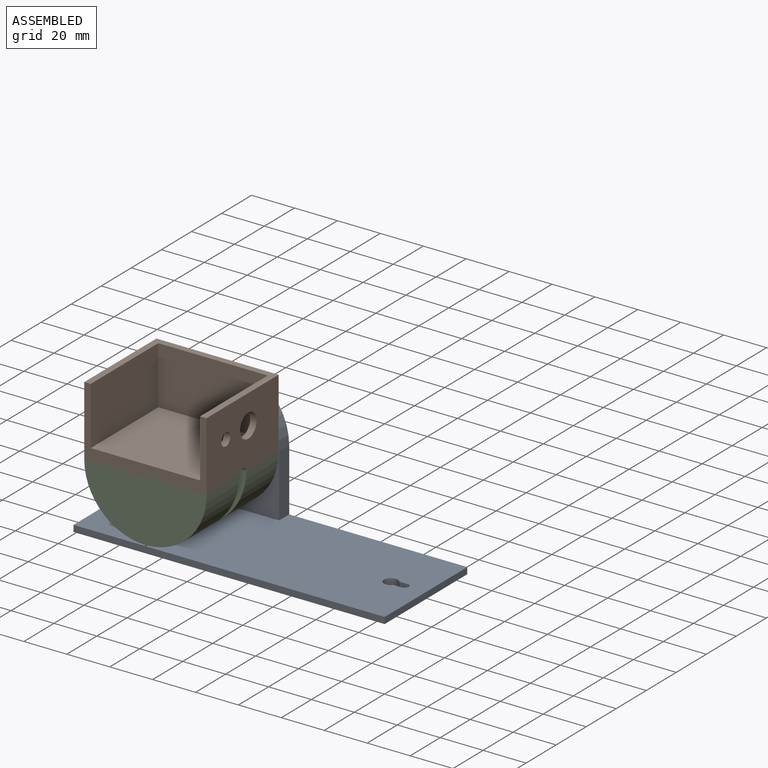
[diagram: assembled view]
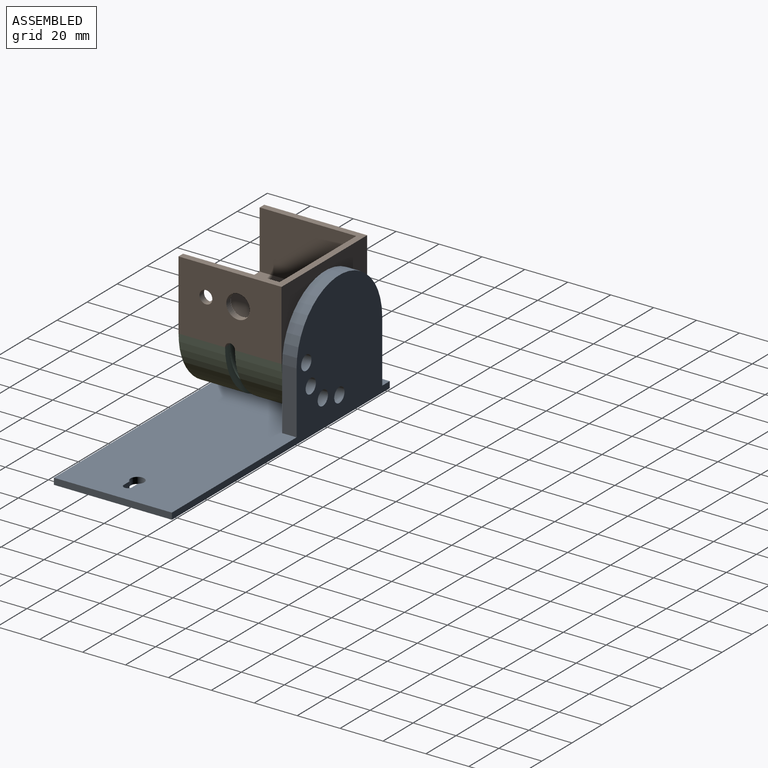
[diagram: assembled view, second angle]
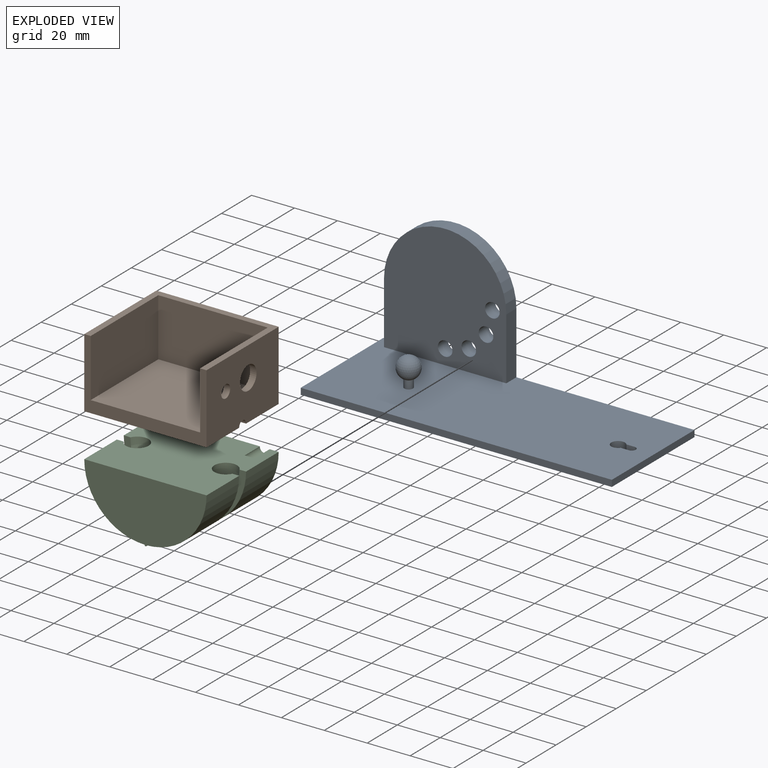
[diagram: exploded view]
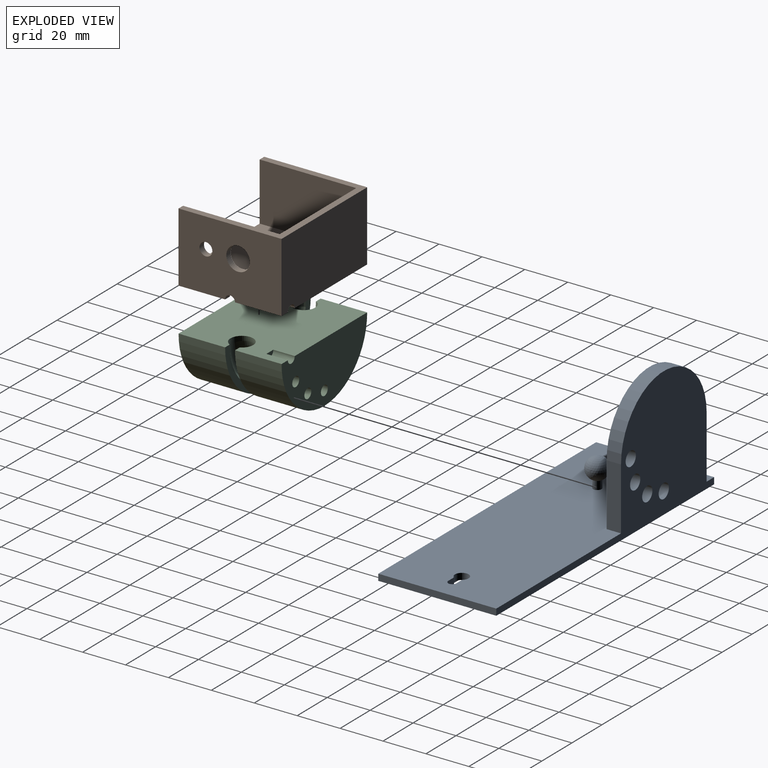
[diagram: exploded view, second angle]
ASSEMBLY  parts=3 mates=2
PART A: 20 faces, bbox 145x55x60.5 mm
  f0: plane 55x3mm, normal (-1,0,0), area 165mm2, adj f1,f3,f4,f5
  f1: plane 145x55mm, normal (0,0,-1), area 7924.8mm2, adj f0,f2,f4,f5,f16,f17,f18,f19
  f2: plane 55x3mm, normal (1,0,0), area 165mm2, adj f1,f3,f4,f5
  f3: plane 145x55mm, normal (0,0,1), area 7530.3mm2, adj f0,f2,f4,f5,f6,f8,f13,f14
  f4: plane 145x3mm, normal (0,-1,0), area 435mm2, adj f0,f1,f2,f3
  f5: plane 145x60.5mm, normal (0,1,0), area 3218.6mm2, adj f0,f1,f2,f3,f6,f7,f8,f9
  f6: plane 29x6.7mm, normal (1,0,0), area 194.3mm2, adj f3,f5,f7,f13
  f7: cylinder r=28.5mm len=57mm, axis (0,1,0), area 599.9mm2, adj f5,f6,f8,f13
  f8: plane 29x6.7mm, normal (-1,0,0), area 194.3mm2, adj f3,f5,f7,f13
  f9: cylinder r=3.4mm len=6.8mm, axis (0,1,0), area 143.1mm2, adj f5,f13
  f10: cylinder r=3.4mm len=6.8mm, axis (0,1,0), area 143.1mm2, adj f5,f13
  f11: cylinder r=3.4mm len=6.8mm, axis (0,1,0), area 143.1mm2, adj f5,f13
  f12: cylinder r=3.4mm len=6.8mm, axis (0,1,0), area 143.1mm2, adj f5,f13
  f13: plane 57.5x57mm, normal (0,-1,0), area 2783.6mm2, adj f3,f6,f7,f8,f9,f10,f11,f12
  f14: cylinder r=2mm len=4mm, axis (0,0,-1), area 47.8mm2, adj f3,f15
  f15: sphere r=5mm, area 301mm2, adj f14
  f16: plane 3.81x3mm, normal (0,-1,0), area 11.4mm2, adj f1,f3,f17,f19
  f17: cylinder r=3.17mm len=6.35mm, axis (0,0,1), area 47.6mm2, adj f1,f3,f16,f18
  f18: plane 3.81x3mm, normal (0,1,0), area 11.4mm2, adj f1,f3,f17,f19
  f19: cylinder r=1.91mm len=3.81mm, axis (0,0,1), area 18mm2, adj f1,f3,f16,f18
PART B: 18 faces, bbox 48x57x32.5 mm
  f0: plane 57x32.5mm, normal (-1,0,0), area 1844.2mm2, adj f1,f2,f3,f9,f16
  f1: plane 57x48mm, normal (0,0,-1), area 2488.2mm2, adj f0,f2,f3,f4,f10,f11,f12,f13
  f2: plane 48x32.5mm, normal (0,1,0), area 1428.4mm2, adj f0,f1,f4,f9,f13,f14,f15
  f3: plane 48x32.5mm, normal (0,-1,0), area 1551.7mm2, adj f0,f1,f4,f9,f11
  f4: plane 57x32.5mm, normal (1,0,0), area 475.5mm2, adj f1,f2,f3,f5,f6,f7,f9
  f5: plane 51x45mm, normal (0,0,1), area 2295mm2, adj f4,f6,f7,f8
  f6: plane 45x27mm, normal (0,1,0), area 1215mm2, adj f4,f5,f8,f9
  f7: plane 45x27mm, normal (0,-1,0), area 1091.7mm2, adj f4,f5,f8,f9,f14,f15
  f8: plane 51x27mm, normal (1,0,0), area 1377mm2, adj f5,f6,f7,f9
  f9: plane 57x48mm, normal (0,0,1), area 441mm2, adj f0,f2,f3,f4,f6,f7,f8
  f10: sphere r=5.3mm, area 167.8mm2, adj f1,f11
  f11: cylinder r=2.3mm len=4.6mm, axis (0,1,0), area 22.5mm2, adj f1,f3,f10
  f12: sphere r=5.3mm, area 167.8mm2, adj f1,f13
  f13: cylinder r=2.3mm len=4.6mm, axis (0,1,0), area 22.5mm2, adj f1,f2,f12
  f14: cylinder r=5.5mm len=11mm, axis (0,1,0), area 103.7mm2, adj f2,f7
  f15: cylinder r=3mm len=6mm, axis (0,1,0), area 56.5mm2, adj f2,f7
  f16: cylinder r=2.3mm len=10mm, axis (-1,0,0), area 72.3mm2, adj f0,f1,f17
  f17: plane 4.6x2.3mm, normal (-1,0,0), area 8.3mm2, adj f1,f16
PART C: 24 faces, bbox 57x48x29 mm
  f0: plane 57x48mm, normal (0,0,1), area 2488.2mm2, adj f1,f2,f3,f4,f5,f6,f7,f8
  f1: cylinder r=28.5mm len=28.5mm, axis (0,1,0), area 964.9mm2, adj f0,f6,f9,f13
  f2: cylinder r=28.5mm len=28.5mm, axis (0,1,0), area 964.9mm2, adj f0,f6,f9,f14
  f3: cylinder r=28.5mm len=28.5mm, axis (0,1,0), area 964.9mm2, adj f0,f5,f7,f10
  f4: cylinder r=28.5mm len=28.5mm, axis (0,1,0), area 964.9mm2, adj f0,f5,f7,f11
  f5: plane 57x29mm, normal (0,-1,0), area 1218mm2, adj f0,f3,f4,f10,f11,f12,f16,f18
  f6: plane 57x29mm, normal (0,1,0), area 1276.2mm2, adj f0,f1,f2,f13,f14,f15
  f7: plane 57x29mm, normal (0,1,0), area 263.4mm2, adj f0,f3,f4,f8,f10,f11,f12
  f8: torus R=20.62mm, axis (0,-1,0), area 1772.2mm2, adj f0,f7,f9
  f9: plane 57x29mm, normal (0,-1,0), area 263.4mm2, adj f0,f1,f2,f8,f13,f14,f15
  f10: plane 21.7x0.5mm, normal (1,0,0), area 10.9mm2, adj f3,f5,f7,f12
  f11: plane 21.7x0.5mm, normal (-1,0,0), area 10.9mm2, adj f4,f5,f7,f12
  f12: plane 21.7x0.6mm, normal (0,0,-1), area 13mm2, adj f5,f7,f10,f11
  f13: plane 21.7x0.5mm, normal (1,0,0), area 10.9mm2, adj f1,f6,f9,f15
  f14: plane 21.7x0.5mm, normal (-1,0,0), area 10.9mm2, adj f2,f6,f9,f15
  f15: plane 21.7x0.6mm, normal (0,0,-1), area 13mm2, adj f6,f9,f13,f14
  f16: cylinder r=2.3mm len=10mm, axis (0,-1,0), area 72.3mm2, adj f0,f5,f17
  f17: plane 4.6x2.3mm, normal (0,-1,0), area 8.3mm2, adj f0,f16
  f18: cylinder r=2.3mm len=10mm, axis (0,-1,0), area 144.5mm2, adj f5,f19
  f19: plane 4.6x4.6mm, normal (0,-1,0), area 16.6mm2, adj f18
  f20: cylinder r=2.3mm len=10mm, axis (0,-1,0), area 144.5mm2, adj f5,f21
  f21: plane 4.6x4.6mm, normal (0,-1,0), area 16.6mm2, adj f20
  f22: cylinder r=2.3mm len=10mm, axis (0,-1,0), area 144.5mm2, adj f5,f23
  f23: plane 4.6x4.6mm, normal (0,-1,0), area 16.6mm2, adj f22
PLACE A t=(-25.58,22.42,-13.96)mm fixed
PLACE B rot(axis=(0,0,-1),90deg) t=(-64.58,-10.08,17.54)mm
PLACE C rot(axis=(0,0,1),180deg) t=(-64.58,-32.58,17.54)mm
MATE fastened C.f22 <-> A.f10  axis (0,1,0) through (-45.53,15.42,6.54)mm
MATE fastened B.f1 <-> C.f0  axis (0,0,-1) through (-93.08,15.42,17.54)mm
